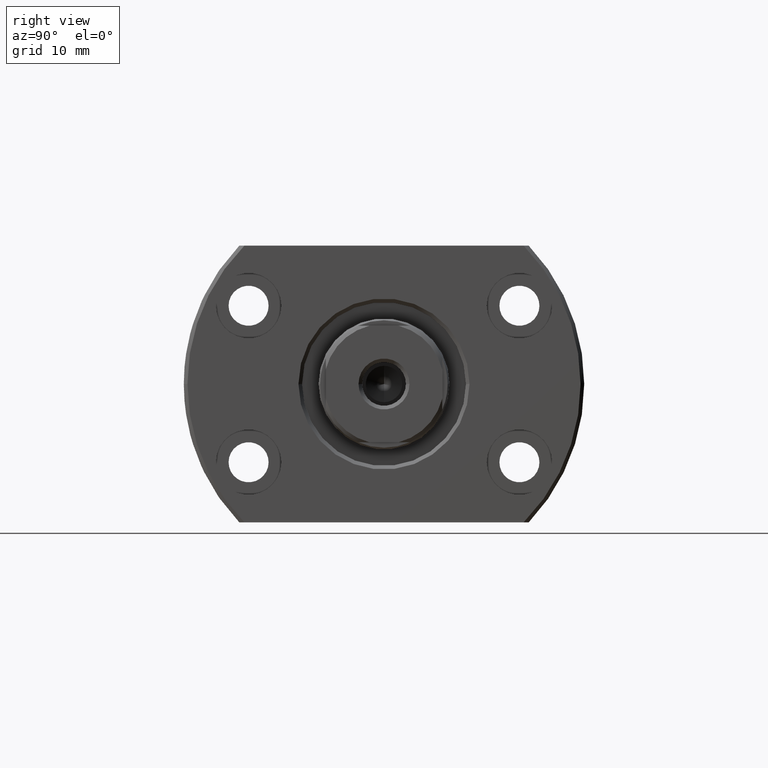
[diagram: clean part render]
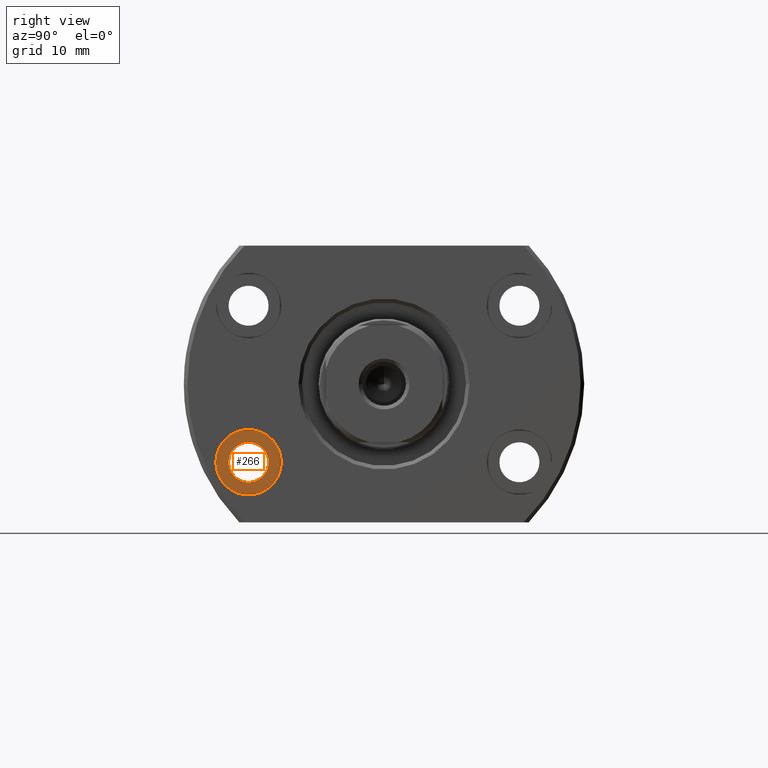
[diagram: same view with one face highlighted and labeled with its STEP entity id]
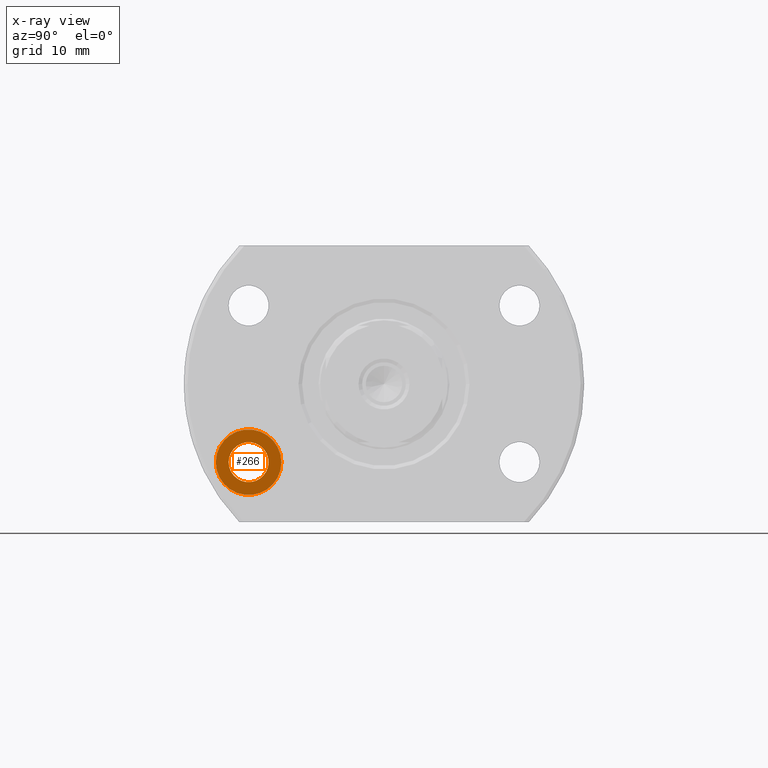
[diagram: x-ray of the same camera — body ghosted, the highlighted face saturated]
A machine part, right view. The second image highlights one B-rep face of the part: STEP entity #266.
The next image is the same camera in x-ray: the body ghosted, the highlighted face saturated — about 0% of this face is hidden behind the body in this view.
In plain terms, the highlighted planar face has unit normal (1, -0, -0).
Its self-contained STEP definition (entity closure, byte-faithful):
#5 = EDGE_LOOP ( 'NONE', ( #2480, #1294 ) ) ;
#74 = AXIS2_PLACEMENT_3D ( 'NONE', #2617, #2328, #126 ) ;
#126 = DIRECTION ( 'NONE',  ( 2.883293662278287419E-14, 1.000000000000000000, 0.000000000000000000 ) ) ;
#161 = FACE_OUTER_BOUND ( 'NONE', #5, .T. ) ;
#266 = ADVANCED_FACE ( 'NONE', ( #864, #161 ), #636, .T. ) ;
#327 = DIRECTION ( 'NONE',  ( 1.000000000000000000, -2.883293662278287419E-14, -3.155443620884046521E-30 ) ) ;
#329 = CARTESIAN_POINT ( 'NONE',  ( 20.99999999999946354, -18.60000000000060894, -10.75000000000000000 ) ) ;
#604 = CARTESIAN_POINT ( 'NONE',  ( 20.99999999999946354, -18.60000000000060894, -10.75000000000000000 ) ) ;
#636 = PLANE ( 'NONE',  #74 ) ;
#653 = CARTESIAN_POINT ( 'NONE',  ( 20.99999999999933564, -23.10000000000060894, -10.75000000000000000 ) ) ;
#672 = VERTEX_POINT ( 'NONE', #2736 ) ;
#764 = EDGE_CURVE ( 'NONE', #672, #1773, #1004, .T. ) ;
#864 = FACE_BOUND ( 'NONE', #1106, .T. ) ;
#919 = VERTEX_POINT ( 'NONE', #653 ) ;
#966 = EDGE_CURVE ( 'NONE', #1773, #672, #3148, .T. ) ;
#1004 = CIRCLE ( 'NONE', #1318, 2.749999999999999112 ) ;
#1106 = EDGE_LOOP ( 'NONE', ( #2190, #2891 ) ) ;
#1294 = ORIENTED_EDGE ( 'NONE', *, *, #1549, .T. ) ;
#1318 = AXIS2_PLACEMENT_3D ( 'NONE', #2116, #327, #2292 ) ;
#1387 = DIRECTION ( 'NONE',  ( 1.000000000000000000, -2.883293662278287419E-14, -3.155443620884046521E-30 ) ) ;
#1549 = EDGE_CURVE ( 'NONE', #919, #1786, #2149, .T. ) ;
#1572 = DIRECTION ( 'NONE',  ( 1.000000000000000000, -2.883293662278287419E-14, -3.155443620884046521E-30 ) ) ;
#1773 = VERTEX_POINT ( 'NONE', #1977 ) ;
#1786 = VERTEX_POINT ( 'NONE', #2210 ) ;
#1977 = CARTESIAN_POINT ( 'NONE',  ( 20.99999999999954525, -15.85000000000061071, -10.75000000000000000 ) ) ;
#2026 = DIRECTION ( 'NONE',  ( 2.852656382717415620E-14, 1.000000000000000000, 0.000000000000000000 ) ) ;
#2116 = CARTESIAN_POINT ( 'NONE',  ( 20.99999999999946709, -18.60000000000060894, -10.75000000000000000 ) ) ;
#2149 = CIRCLE ( 'NONE', #2993, 4.500000000000000888 ) ;
#2153 = AXIS2_PLACEMENT_3D ( 'NONE', #604, #1387, #2349 ) ;
#2190 = ORIENTED_EDGE ( 'NONE', *, *, #966, .F. ) ;
#2210 = CARTESIAN_POINT ( 'NONE',  ( 20.99999999999959144, -14.10000000000060894, -10.75000000000000000 ) ) ;
#2247 = AXIS2_PLACEMENT_3D ( 'NONE', #2299, #1572, #2537 ) ;
#2292 = DIRECTION ( 'NONE',  ( 2.901719268906659886E-14, 1.000000000000000000, 0.000000000000000000 ) ) ;
#2299 = CARTESIAN_POINT ( 'NONE',  ( 20.99999999999946709, -18.60000000000060894, -10.75000000000000000 ) ) ;
#2302 = CIRCLE ( 'NONE', #2153, 4.500000000000000888 ) ;
#2328 = DIRECTION ( 'NONE',  ( 1.000000000000000000, -2.883293662278287419E-14, -3.155443620884046521E-30 ) ) ;
#2349 = DIRECTION ( 'NONE',  ( 2.852656382717415620E-14, 1.000000000000000000, 0.000000000000000000 ) ) ;
#2480 = ORIENTED_EDGE ( 'NONE', *, *, #3103, .T. ) ;
#2537 = DIRECTION ( 'NONE',  ( 2.901719268906659886E-14, 1.000000000000000000, 0.000000000000000000 ) ) ;
#2617 = CARTESIAN_POINT ( 'NONE',  ( 21.00000000000000355, -6.053171843620969921E-13, -8.361925595342724016E-29 ) ) ;
#2736 = CARTESIAN_POINT ( 'NONE',  ( 20.99999999999938893, -21.35000000000060894, -10.75000000000000000 ) ) ;
#2822 = DIRECTION ( 'NONE',  ( 1.000000000000000000, -2.883293662278287419E-14, -3.155443620884046521E-30 ) ) ;
#2891 = ORIENTED_EDGE ( 'NONE', *, *, #764, .F. ) ;
#2993 = AXIS2_PLACEMENT_3D ( 'NONE', #329, #2822, #2026 ) ;
#3103 = EDGE_CURVE ( 'NONE', #1786, #919, #2302, .T. ) ;
#3148 = CIRCLE ( 'NONE', #2247, 2.749999999999999112 ) ;